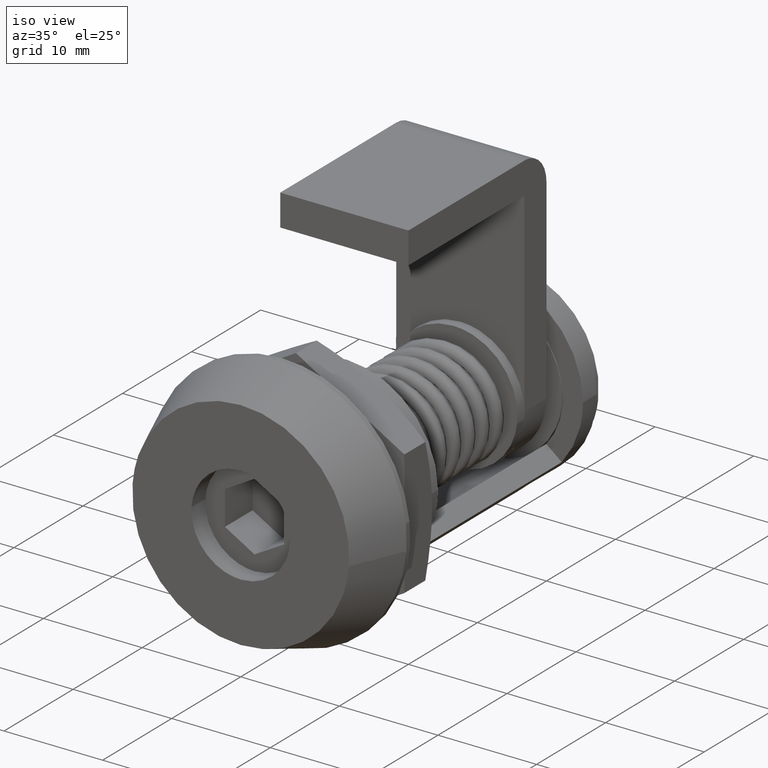
[diagram: clean part render]
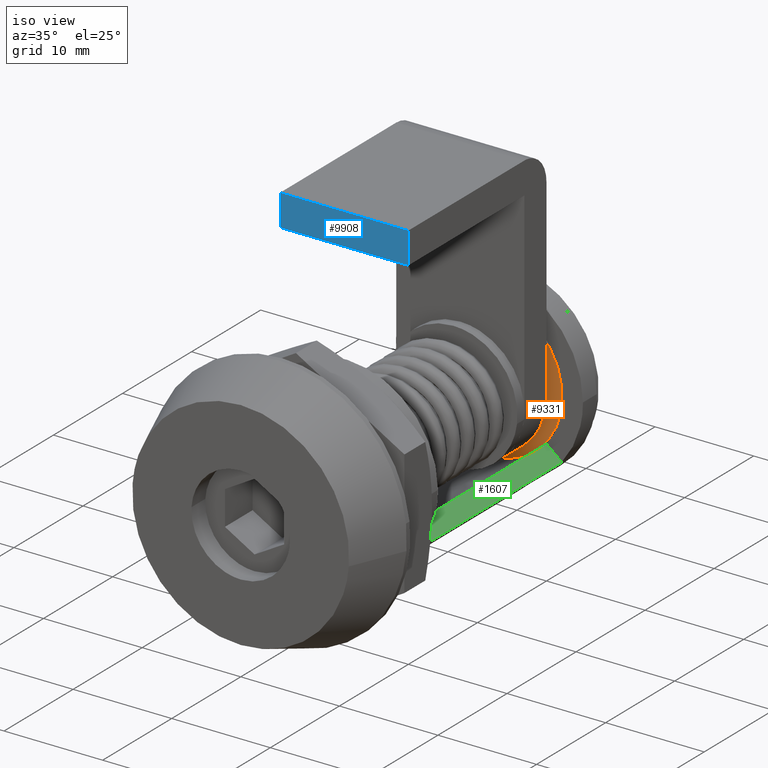
[diagram: same view with three faces highlighted in distinct colors, each labeled with its STEP entity id]
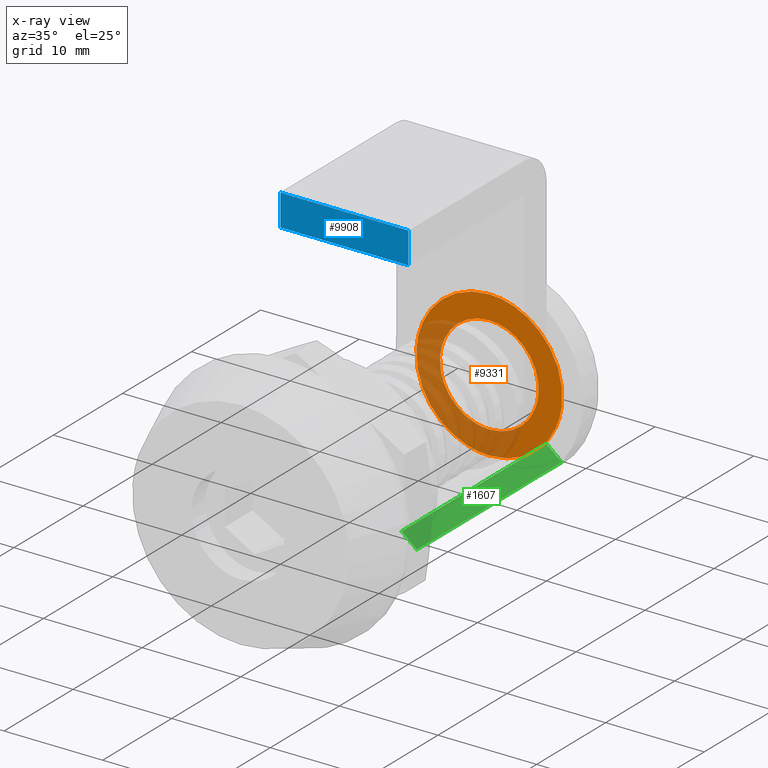
[diagram: x-ray of the same camera — body ghosted, the three highlighted faces saturated]
A machine part, iso view with three faces highlighted in distinct colors.
The next image is the same camera in x-ray (body ghosted, the three faces saturated) — at least one of them is partly hidden behind the body in this view.
Their STEP definitions:

[orange] entity #9331 — the highlighted face is a freeform B-spline surface patch.
#8588=CARTESIAN_POINT('',(7.348271001227722,35.999999999999922,-0.873449078365385));
#8589=VERTEX_POINT('',#8588);
#8590=CARTESIAN_POINT('',(0.0,36.0,7.400000000000000));
#8591=VERTEX_POINT('',#8590);
#8592=CARTESIAN_POINT('',(7.348271001227722,35.999999999999915,-0.873449078365385));
#8593=CARTESIAN_POINT('',(7.400000000000001,36.0,-0.438256333868989));
#8594=CARTESIAN_POINT('',(7.400000000000000,36.0,-2.821493E-016));
#8595=CARTESIAN_POINT('',(7.400000000000000,36.0,7.400000000000000));
#8596=CARTESIAN_POINT('',(0.0,36.0,7.400000000000000));
#8604=(BOUNDED_CURVE()B_SPLINE_CURVE(2,(#8592,#8593,#8594,#8595,#8596),.UNSPECIFIED.,.F.,.U.)B_SPLINE_CURVE_WITH_KNOTS((3,2,3),(0.229562571447784,0.250000000000000,0.500000000000000),.UNSPECIFIED.)CURVE()GEOMETRIC_REPRESENTATION_ITEM()RATIONAL_B_SPLINE_CURVE((0.956026946138978,0.976056063068286,1.0,0.707106781186548,1.0))REPRESENTATION_ITEM(''));
#8605=EDGE_CURVE('',#8589,#8591,#8604,.T.);
#8646=CARTESIAN_POINT('',(-7.386198108129401,36.000000000000249,0.451749385576918));
#8647=VERTEX_POINT('',#8646);
#8653=CARTESIAN_POINT('',(0.0,36.0,7.400000000000000));
#8654=CARTESIAN_POINT('',(-6.961234155105028,36.0,7.400000000000000));
#8655=CARTESIAN_POINT('',(-7.386198108129401,36.000000000000249,0.451749385576918));
#8663=(BOUNDED_CURVE()B_SPLINE_CURVE(2,(#8653,#8654,#8655),.UNSPECIFIED.,.F.,.U.)B_SPLINE_CURVE_WITH_KNOTS((3,3),(0.500000000000000,0.739333191340010),.UNSPECIFIED.)CURVE()GEOMETRIC_REPRESENTATION_ITEM()RATIONAL_B_SPLINE_CURVE((1.0,0.719603724878115,0.976072532674407))REPRESENTATION_ITEM(''));
#8664=EDGE_CURVE('',#8591,#8647,#8663,.T.);
#8687=CARTESIAN_POINT('',(0.0,36.0,-7.400000000000000));
#8688=VERTEX_POINT('',#8687);
#8689=CARTESIAN_POINT('',(0.0,36.0,-7.400000000000000));
#8690=CARTESIAN_POINT('',(6.572495327406648,36.0,-7.400000000000000));
#8691=CARTESIAN_POINT('',(7.348271001227722,35.999999999999915,-0.873449078365385));
#8699=(BOUNDED_CURVE()B_SPLINE_CURVE(2,(#8689,#8690,#8691),.UNSPECIFIED.,.F.,.U.)B_SPLINE_CURVE_WITH_KNOTS((3,3),(0.0,0.229562571447784),.UNSPECIFIED.)CURVE()GEOMETRIC_REPRESENTATION_ITEM()RATIONAL_B_SPLINE_CURVE((1.0,0.731050718118261,0.956026946138978))REPRESENTATION_ITEM(''));
#8700=EDGE_CURVE('',#8688,#8589,#8699,.T.);
#8702=CARTESIAN_POINT('',(-7.386198108129401,36.000000000000249,0.451749385576918));
#8703=CARTESIAN_POINT('',(-7.400000000000000,36.000000000000014,0.226085531170635));
#8704=CARTESIAN_POINT('',(-7.400000000000000,36.0,-2.821493E-016));
#8705=CARTESIAN_POINT('',(-7.400000000000000,36.0,-7.400000000000000));
#8706=CARTESIAN_POINT('',(0.0,36.0,-7.400000000000000));
#8714=(BOUNDED_CURVE()B_SPLINE_CURVE(2,(#8702,#8703,#8704,#8705,#8706),.UNSPECIFIED.,.F.,.U.)B_SPLINE_CURVE_WITH_KNOTS((3,2,3),(0.739333191340010,0.750000000000000,1.0),.UNSPECIFIED.)CURVE()GEOMETRIC_REPRESENTATION_ITEM()RATIONAL_B_SPLINE_CURVE((0.976072532674407,0.987503056308433,1.0,0.707106781186548,1.0))REPRESENTATION_ITEM(''));
#8715=EDGE_CURVE('',#8647,#8688,#8714,.T.);
#8774=CARTESIAN_POINT('',(4.965047631814872,36.0,-0.590171173312899));
#8775=VERTEX_POINT('',#8774);
#8776=CARTESIAN_POINT('',(0.0,36.0,5.0));
#8777=VERTEX_POINT('',#8776);
#8778=CARTESIAN_POINT('',(4.965047631814872,36.0,-0.590171173312899));
#8779=CARTESIAN_POINT('',(5.000000000000001,36.0,-0.296120598288965));
#8780=CARTESIAN_POINT('',(5.0,36.0,-2.821493E-016));
#8781=CARTESIAN_POINT('',(5.000000000000001,36.0,5.000000000000001));
#8782=CARTESIAN_POINT('',(0.0,36.0,5.0));
#8790=(BOUNDED_CURVE()B_SPLINE_CURVE(2,(#8778,#8779,#8780,#8781,#8782),.UNSPECIFIED.,.F.,.U.)B_SPLINE_CURVE_WITH_KNOTS((3,2,3),(0.229562473513663,0.250000000000000,0.500000000000000),.UNSPECIFIED.)CURVE()GEOMETRIC_REPRESENTATION_ITEM()RATIONAL_B_SPLINE_CURVE((0.956026754184002,0.976055948331326,1.0,0.707106781186548,1.0))REPRESENTATION_ITEM(''));
#8791=EDGE_CURVE('',#8775,#8777,#8790,.T.);
#8793=CARTESIAN_POINT('',(-4.990674044526246,35.999999999999993,0.305241840662935));
#8794=VERTEX_POINT('',#8793);
#8795=CARTESIAN_POINT('',(0.0,36.0,5.0));
#8796=CARTESIAN_POINT('',(-4.703531952951984,35.999999999999993,5.000000000000001));
#8797=CARTESIAN_POINT('',(-4.990674044526246,35.999999999999986,0.305241840662935));
#8805=(BOUNDED_CURVE()B_SPLINE_CURVE(2,(#8795,#8796,#8797),.UNSPECIFIED.,.F.,.U.)B_SPLINE_CURVE_WITH_KNOTS((3,3),(0.500000000000000,0.739333021502326),.UNSPECIFIED.)CURVE()GEOMETRIC_REPRESENTATION_ITEM()RATIONAL_B_SPLINE_CURVE((1.0,0.719603923855338,0.976072168679462))REPRESENTATION_ITEM(''));
#8806=EDGE_CURVE('',#8777,#8794,#8805,.T.);
#8873=CARTESIAN_POINT('',(0.0,36.0,-5.0));
#8874=VERTEX_POINT('',#8873);
#8875=CARTESIAN_POINT('',(0.0,36.0,-5.0));
#8876=CARTESIAN_POINT('',(4.440872629704403,36.0,-5.000000000000001));
#8877=CARTESIAN_POINT('',(4.965047631814872,36.0,-0.590171173312899));
#8885=(BOUNDED_CURVE()B_SPLINE_CURVE(2,(#8875,#8876,#8877),.UNSPECIFIED.,.F.,.U.)B_SPLINE_CURVE_WITH_KNOTS((3,3),(0.0,0.229562473513663),.UNSPECIFIED.)CURVE()GEOMETRIC_REPRESENTATION_ITEM()RATIONAL_B_SPLINE_CURVE((1.0,0.731050832855222,0.956026754184002))REPRESENTATION_ITEM(''));
#8886=EDGE_CURVE('',#8874,#8775,#8885,.T.);
#8920=CARTESIAN_POINT('',(-4.990674044526247,35.999999999999986,0.305241840662935));
#8921=CARTESIAN_POINT('',(-5.0,35.999999999999993,0.152762957078632));
#8922=CARTESIAN_POINT('',(-5.0,36.0,-2.821493E-016));
#8923=CARTESIAN_POINT('',(-5.000000000000001,36.0,-5.000000000000001));
#8924=CARTESIAN_POINT('',(0.0,36.0,-5.0));
#8932=(BOUNDED_CURVE()B_SPLINE_CURVE(2,(#8920,#8921,#8922,#8923,#8924),.UNSPECIFIED.,.F.,.U.)B_SPLINE_CURVE_WITH_KNOTS((3,2,3),(0.739333021502327,0.750000000000000,1.0),.UNSPECIFIED.)CURVE()GEOMETRIC_REPRESENTATION_ITEM()RATIONAL_B_SPLINE_CURVE((0.976072168679464,0.987502857331211,1.0,0.707106781186548,1.0))REPRESENTATION_ITEM(''));
#8933=EDGE_CURVE('',#8794,#8874,#8932,.T.);
#9314=CARTESIAN_POINT('',(-8.139080417619448,36.0,8.139260110246541));
#9315=CARTESIAN_POINT('',(-8.139080417619448,36.0,-8.139260374891164));
#9316=CARTESIAN_POINT('',(8.139125407205329,36.0,8.139260110246541));
#9317=CARTESIAN_POINT('',(8.139125407205329,36.0,-8.139260374891164));
#9318=B_SPLINE_SURFACE_WITH_KNOTS('',1,1,((#9314,#9316),(#9315,#9317)),.UNSPECIFIED.,.F.,.F.,.U.,(2,2),(2,2),(0.0,16.278520485137712),(0.0,16.278205824824781),.UNSPECIFIED.);
#9319=ORIENTED_EDGE('',*,*,#8700,.T.);
#9320=ORIENTED_EDGE('',*,*,#8605,.T.);
#9321=ORIENTED_EDGE('',*,*,#8664,.T.);
#9322=ORIENTED_EDGE('',*,*,#8715,.T.);
#9323=EDGE_LOOP('',(#9319,#9320,#9321,#9322));
#9324=FACE_OUTER_BOUND('',#9323,.T.);
#9325=ORIENTED_EDGE('',*,*,#8806,.F.);
#9326=ORIENTED_EDGE('',*,*,#8791,.F.);
#9327=ORIENTED_EDGE('',*,*,#8886,.F.);
#9328=ORIENTED_EDGE('',*,*,#8933,.F.);
#9329=EDGE_LOOP('',(#9325,#9326,#9327,#9328));
#9330=FACE_BOUND('',#9329,.T.);
#9331=ADVANCED_FACE('',(#9324,#9330),#9318,.T.);

[blue] entity #9908 — the highlighted face is a freeform B-spline surface patch.
#9748=CARTESIAN_POINT('',(-6.500000000000000,15.0,23.0));
#9749=VERTEX_POINT('',#9748);
#9769=CARTESIAN_POINT('',(-6.500000000000000,15.0,19.800000000000001));
#9770=VERTEX_POINT('',#9769);
#9776=CARTESIAN_POINT('',(-6.500000000000000,15.0,23.0));
#9777=CARTESIAN_POINT('',(-6.500000000000000,15.0,19.800000000000001));
#9778=QUASI_UNIFORM_CURVE('',1,(#9776,#9777),.UNSPECIFIED.,.F.,.U.);
#9779=EDGE_CURVE('',#9749,#9770,#9778,.T.);
#9795=CARTESIAN_POINT('',(6.500000000000000,15.0,23.0));
#9796=VERTEX_POINT('',#9795);
#9802=CARTESIAN_POINT('',(6.500000000000000,15.0,19.800000000000001));
#9803=VERTEX_POINT('',#9802);
#9804=CARTESIAN_POINT('',(6.500000000000000,15.0,23.0));
#9805=CARTESIAN_POINT('',(6.500000000000000,15.0,19.800000000000001));
#9806=QUASI_UNIFORM_CURVE('',1,(#9804,#9805),.UNSPECIFIED.,.F.,.U.);
#9807=EDGE_CURVE('',#9796,#9803,#9806,.T.);
#9833=CARTESIAN_POINT('',(6.500000000000000,15.0,23.0));
#9834=CARTESIAN_POINT('',(-6.500000000000000,15.0,23.0));
#9835=QUASI_UNIFORM_CURVE('',1,(#9833,#9834),.UNSPECIFIED.,.F.,.U.);
#9836=EDGE_CURVE('',#9796,#9749,#9835,.T.);
#9889=CARTESIAN_POINT('',(6.500000000000000,15.0,19.800000000000001));
#9890=CARTESIAN_POINT('',(-6.500000000000000,15.0,19.800000000000001));
#9891=QUASI_UNIFORM_CURVE('',1,(#9889,#9890),.UNSPECIFIED.,.F.,.U.);
#9892=EDGE_CURVE('',#9803,#9770,#9891,.T.);
#9897=CARTESIAN_POINT('',(-7.149349974803478,15.0,19.640159195140839));
#9898=CARTESIAN_POINT('',(-7.149349974803478,15.0,23.159840118213658));
#9899=CARTESIAN_POINT('',(7.149350323490650,15.0,19.640159195140839));
#9900=CARTESIAN_POINT('',(7.149350323490650,15.0,23.159840118213658));
#9901=B_SPLINE_SURFACE_WITH_KNOTS('',1,1,((#9897,#9899),(#9898,#9900)),.UNSPECIFIED.,.F.,.F.,.U.,(2,2),(2,2),(0.0,3.519680923072823),(0.0,14.298700298294129),.UNSPECIFIED.);
#9902=ORIENTED_EDGE('',*,*,#9779,.T.);
#9903=ORIENTED_EDGE('',*,*,#9892,.F.);
#9904=ORIENTED_EDGE('',*,*,#9807,.F.);
#9905=ORIENTED_EDGE('',*,*,#9836,.T.);
#9906=EDGE_LOOP('',(#9902,#9903,#9904,#9905));
#9907=FACE_OUTER_BOUND('',#9906,.T.);
#9908=ADVANCED_FACE('',(#9907),#9901,.F.);

[green] entity #1607 — the highlighted face is a freeform B-spline surface patch.
#1032=CARTESIAN_POINT('',(5.796918146862600,15.0,-4.758754038461651));
#1033=VERTEX_POINT('',#1032);
#1051=CARTESIAN_POINT('',(5.796918146862600,36.0,-4.758754038461651));
#1052=VERTEX_POINT('',#1051);
#1053=CARTESIAN_POINT('',(5.796918146862600,15.0,-4.758754038461651));
#1054=CARTESIAN_POINT('',(5.796918146862600,36.0,-4.758754038461651));
#1055=QUASI_UNIFORM_CURVE('',1,(#1053,#1054),.UNSPECIFIED.,.F.,.U.);
#1056=EDGE_CURVE('',#1033,#1052,#1055,.T.);
#1269=CARTESIAN_POINT('',(7.342762986025960,36.0,-6.027755115384750));
#1270=VERTEX_POINT('',#1269);
#1284=CARTESIAN_POINT('',(7.342762986025960,15.0,-6.027755115384750));
#1285=VERTEX_POINT('',#1284);
#1286=CARTESIAN_POINT('',(7.342762986025960,36.0,-6.027755115384750));
#1287=CARTESIAN_POINT('',(7.342762986025960,15.0,-6.027755115384750));
#1288=QUASI_UNIFORM_CURVE('',1,(#1286,#1287),.UNSPECIFIED.,.F.,.U.);
#1289=EDGE_CURVE('',#1270,#1285,#1288,.T.);
#1557=CARTESIAN_POINT('',(5.796918146862600,15.0,-4.758754038461651));
#1558=CARTESIAN_POINT('',(7.342762986025960,15.0,-6.027755115384750));
#1559=QUASI_UNIFORM_CURVE('',1,(#1557,#1558),.UNSPECIFIED.,.F.,.U.);
#1560=EDGE_CURVE('',#1033,#1285,#1559,.T.);
#1588=CARTESIAN_POINT('',(5.796918146862600,36.0,-4.758754038461651));
#1589=CARTESIAN_POINT('',(7.342762986025960,36.0,-6.027755115384750));
#1590=QUASI_UNIFORM_CURVE('',1,(#1588,#1589),.UNSPECIFIED.,.F.,.U.);
#1591=EDGE_CURVE('',#1052,#1270,#1590,.T.);
#1596=CARTESIAN_POINT('',(7.419977990791162,13.951050040702070,-6.091141764367388));
#1597=CARTESIAN_POINT('',(5.719703155918327,13.951050040702070,-4.695367400824766));
#1598=CARTESIAN_POINT('',(7.419977990791162,37.048950522561832,-6.091141764367388));
#1599=CARTESIAN_POINT('',(5.719703155918327,37.048950522561832,-4.695367400824766));
#1600=B_SPLINE_SURFACE_WITH_KNOTS('',1,1,((#1596,#1598),(#1597,#1599)),.UNSPECIFIED.,.F.,.F.,.U.,(2,2),(2,2),(0.0,2.199800124562378),(0.0,23.097900481859750),.UNSPECIFIED.);
#1601=ORIENTED_EDGE('',*,*,#1591,.F.);
#1602=ORIENTED_EDGE('',*,*,#1056,.F.);
#1603=ORIENTED_EDGE('',*,*,#1560,.T.);
#1604=ORIENTED_EDGE('',*,*,#1289,.F.);
#1605=EDGE_LOOP('',(#1601,#1602,#1603,#1604));
#1606=FACE_OUTER_BOUND('',#1605,.T.);
#1607=ADVANCED_FACE('',(#1606),#1600,.F.);